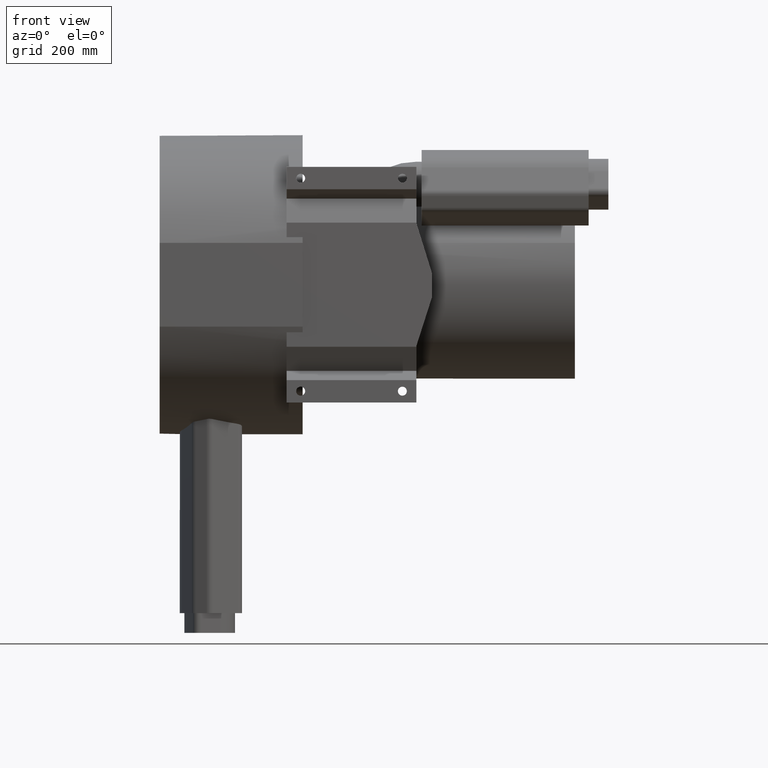
[diagram: clean part render]
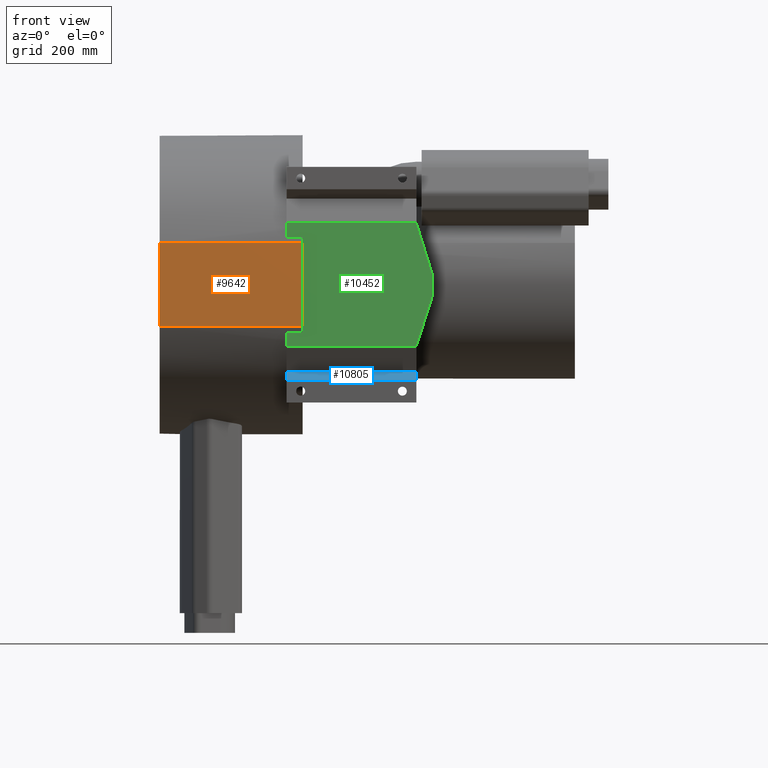
[diagram: same view with three faces highlighted in distinct colors, each labeled with its STEP entity id]
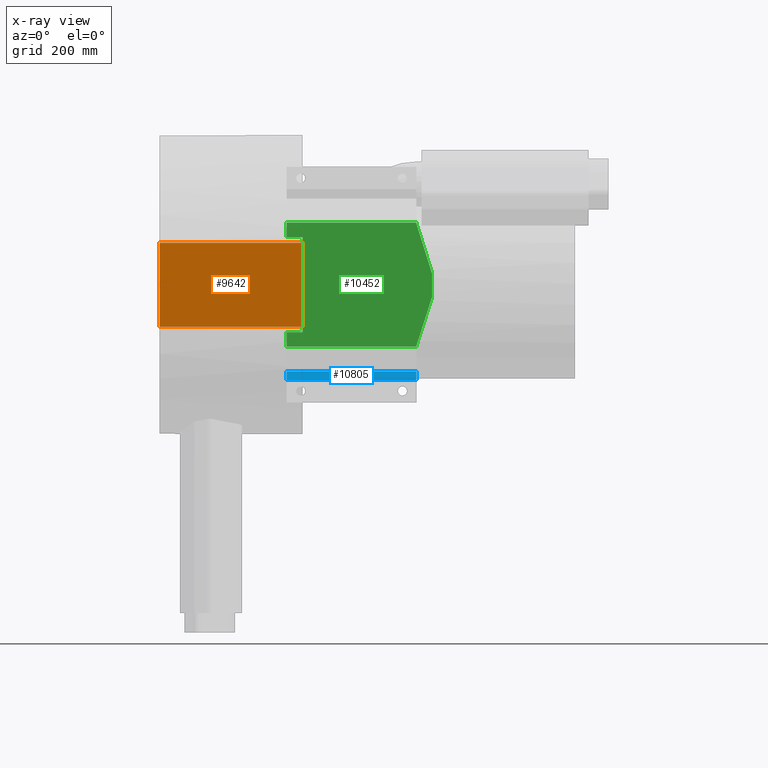
[diagram: x-ray of the same camera — body ghosted, the three highlighted faces saturated]
A machine part, front view with three faces highlighted in distinct colors.
The next image is the same camera in x-ray (body ghosted, the three faces saturated) — at least one of them is partly hidden behind the body in this view.
Their STEP definitions:

[orange] entity #9642 — the highlighted planar face has unit normal (0, 1, 0).
#6292=CARTESIAN_POINT('',(0.0,-240.0,-70.0));
#6293=VERTEX_POINT('',#6292);
#6294=CARTESIAN_POINT('',(0.0,-240.0,70.0));
#6295=VERTEX_POINT('',#6294);
#6296=CARTESIAN_POINT('',(0.0,-240.0,-69.999999999999986));
#6297=DIRECTION('',(0.0,0.0,1.0));
#6298=VECTOR('',#6297,140.0);
#6299=LINE('',#6296,#6298);
#6300=EDGE_CURVE('',#6293,#6295,#6299,.T.);
#9612=CARTESIAN_POINT('',(0.0,-240.0,250.00000000000003));
#9613=DIRECTION('',(0.0,1.0,0.0));
#9614=DIRECTION('',(0.0,0.0,1.0));
#9615=AXIS2_PLACEMENT_3D('',#9612,#9613,#9614);
#9616=PLANE('',#9615);
#9617=CARTESIAN_POINT('',(239.00000000000003,-240.0,70.0));
#9618=VERTEX_POINT('',#9617);
#9619=CARTESIAN_POINT('',(0.0,-240.0,70.0));
#9620=DIRECTION('',(1.0,0.0,0.0));
#9621=VECTOR('',#9620,239.00000000000003);
#9622=LINE('',#9619,#9621);
#9623=EDGE_CURVE('',#6295,#9618,#9622,.T.);
#9624=ORIENTED_EDGE('',*,*,#9623,.F.);
#9625=ORIENTED_EDGE('',*,*,#6300,.F.);
#9626=CARTESIAN_POINT('',(239.00000000000003,-240.0,-70.0));
#9627=VERTEX_POINT('',#9626);
#9628=CARTESIAN_POINT('',(239.00000000000003,-240.0,-70.0));
#9629=DIRECTION('',(-1.0,0.0,0.0));
#9630=VECTOR('',#9629,239.00000000000003);
#9631=LINE('',#9628,#9630);
#9632=EDGE_CURVE('',#9627,#6293,#9631,.T.);
#9633=ORIENTED_EDGE('',*,*,#9632,.F.);
#9634=CARTESIAN_POINT('',(239.00000000000003,-240.0,70.0));
#9635=DIRECTION('',(0.0,0.0,-1.0));
#9636=VECTOR('',#9635,140.0);
#9637=LINE('',#9634,#9636);
#9638=EDGE_CURVE('',#9618,#9627,#9637,.T.);
#9639=ORIENTED_EDGE('',*,*,#9638,.F.);
#9640=EDGE_LOOP('',(#9624,#9625,#9633,#9639));
#9641=FACE_OUTER_BOUND('',#9640,.T.);
#9642=ADVANCED_FACE('',(#9641),#9616,.F.);

[blue] entity #10805 — the highlighted planar face has unit normal (0, 0.5, -0.866).
#10727=CARTESIAN_POINT('',(429.30000000000007,-240.0,-159.53589838486226));
#10728=VERTEX_POINT('',#10727);
#10735=CARTESIAN_POINT('',(212.30000000000007,-240.0,-159.53589838486226));
#10736=VERTEX_POINT('',#10735);
#10737=CARTESIAN_POINT('',(212.30000000000007,-240.0,-159.53589838486226));
#10738=DIRECTION('',(1.0,0.0,0.0));
#10739=VECTOR('',#10738,217.0);
#10740=LINE('',#10737,#10739);
#10741=EDGE_CURVE('',#10736,#10728,#10740,.T.);
#10775=CARTESIAN_POINT('',(239.00000000000003,-214.49166975080229,-144.80865704891011));
#10776=DIRECTION('',(0.0,0.5,-0.866025403784439));
#10777=DIRECTION('',(-1.0,0.0,0.0));
#10778=AXIS2_PLACEMENT_3D('',#10775,#10776,#10777);
#10779=PLANE('',#10778);
#10780=CARTESIAN_POINT('',(429.30000000000007,-214.49166975080229,-144.80865704891011));
#10781=VERTEX_POINT('',#10780);
#10782=CARTESIAN_POINT('',(429.30000000000007,-214.49166975080226,-144.80865704891008));
#10783=DIRECTION('',(0.0,-0.866025403784439,-0.5));
#10784=VECTOR('',#10783,29.454482671904376);
#10785=LINE('',#10782,#10784);
#10786=EDGE_CURVE('',#10781,#10728,#10785,.T.);
#10787=ORIENTED_EDGE('',*,*,#10786,.F.);
#10788=CARTESIAN_POINT('',(212.30000000000007,-214.49166975080229,-144.80865704891011));
#10789=VERTEX_POINT('',#10788);
#10790=CARTESIAN_POINT('',(212.30000000000007,-214.49166975080229,-144.80865704891011));
#10791=DIRECTION('',(1.0,0.0,0.0));
#10792=VECTOR('',#10791,217.0);
#10793=LINE('',#10790,#10792);
#10794=EDGE_CURVE('',#10789,#10781,#10793,.T.);
#10795=ORIENTED_EDGE('',*,*,#10794,.F.);
#10796=CARTESIAN_POINT('',(212.30000000000004,-240.0,-159.53589838486226));
#10797=DIRECTION('',(0.0,0.866025403784439,0.5));
#10798=VECTOR('',#10797,29.454482671904376);
#10799=LINE('',#10796,#10798);
#10800=EDGE_CURVE('',#10736,#10789,#10799,.T.);
#10801=ORIENTED_EDGE('',*,*,#10800,.F.);
#10802=ORIENTED_EDGE('',*,*,#10741,.T.);
#10803=EDGE_LOOP('',(#10787,#10795,#10801,#10802));
#10804=FACE_OUTER_BOUND('',#10803,.T.);
#10805=ADVANCED_FACE('',(#10804),#10779,.F.);

[green] entity #10452 — the highlighted planar face has unit normal (0, -1, 0).
#9715=CARTESIAN_POINT('',(212.30000000000004,-237.0,-79.567581338130452));
#9716=VERTEX_POINT('',#9715);
#9717=CARTESIAN_POINT('',(239.00000000000003,-237.0,-79.567581338130452));
#9718=VERTEX_POINT('',#9717);
#9719=CARTESIAN_POINT('',(212.30000000000004,-237.0,-79.567581338130452));
#9720=DIRECTION('',(1.0,0.0,0.0));
#9721=VECTOR('',#9720,26.69999999999996);
#9722=LINE('',#9719,#9721);
#9723=EDGE_CURVE('',#9716,#9718,#9722,.T.);
#9735=CARTESIAN_POINT('',(239.00000000000003,-237.0,79.567581338130452));
#9736=VERTEX_POINT('',#9735);
#9744=CARTESIAN_POINT('',(212.30000000000004,-237.0,79.567581338130452));
#9745=VERTEX_POINT('',#9744);
#9746=CARTESIAN_POINT('',(239.0,-237.0,79.567581338130452));
#9747=DIRECTION('',(-1.0,0.0,0.0));
#9748=VECTOR('',#9747,26.69999999999996);
#9749=LINE('',#9746,#9748);
#9750=EDGE_CURVE('',#9736,#9745,#9749,.T.);
#10330=CARTESIAN_POINT('',(429.30000000000007,-237.0,103.82308546376017));
#10331=VERTEX_POINT('',#10330);
#10339=CARTESIAN_POINT('',(212.30000000000007,-237.0,103.82308546376017));
#10340=VERTEX_POINT('',#10339);
#10347=CARTESIAN_POINT('',(212.30000000000007,-237.0,103.82308546376017));
#10348=DIRECTION('',(1.0,0.0,0.0));
#10349=VECTOR('',#10348,217.0);
#10350=LINE('',#10347,#10349);
#10351=EDGE_CURVE('',#10340,#10331,#10350,.T.);
#10362=CARTESIAN_POINT('',(212.30000000000004,-237.0,103.82308546376017));
#10363=DIRECTION('',(0.0,0.0,-1.0));
#10364=VECTOR('',#10363,24.255504125629713);
#10365=LINE('',#10362,#10364);
#10366=EDGE_CURVE('',#10340,#9745,#10365,.T.);
#10381=CARTESIAN_POINT('',(239.00000000000003,-237.0,-9.457335E-014));
#10382=DIRECTION('',(0.0,-1.0,0.0));
#10383=DIRECTION('',(0.0,0.0,-1.0));
#10384=AXIS2_PLACEMENT_3D('',#10381,#10382,#10383);
#10385=PLANE('',#10384);
#10386=ORIENTED_EDGE('',*,*,#9750,.F.);
#10387=CARTESIAN_POINT('',(239.00000000000003,-237.0,-79.567581338130466));
#10388=DIRECTION('',(0.0,0.0,1.0));
#10389=VECTOR('',#10388,159.1351626762609);
#10390=LINE('',#10387,#10389);
#10391=EDGE_CURVE('',#9718,#9736,#10390,.T.);
#10392=ORIENTED_EDGE('',*,*,#10391,.F.);
#10393=ORIENTED_EDGE('',*,*,#9723,.F.);
#10394=CARTESIAN_POINT('',(212.30000000000007,-237.0,-103.82308546376017));
#10395=VERTEX_POINT('',#10394);
#10396=CARTESIAN_POINT('',(212.30000000000004,-237.0,-103.82308546376017));
#10397=DIRECTION('',(0.0,0.0,1.0));
#10398=VECTOR('',#10397,24.255504125629713);
#10399=LINE('',#10396,#10398);
#10400=EDGE_CURVE('',#10395,#9716,#10399,.T.);
#10401=ORIENTED_EDGE('',*,*,#10400,.F.);
#10402=CARTESIAN_POINT('',(429.30000000000007,-237.0,-103.82308546376017));
#10403=VERTEX_POINT('',#10402);
#10404=CARTESIAN_POINT('',(212.30000000000007,-237.0,-103.82308546376017));
#10405=DIRECTION('',(1.0,0.0,0.0));
#10406=VECTOR('',#10405,217.0);
#10407=LINE('',#10404,#10406);
#10408=EDGE_CURVE('',#10395,#10403,#10407,.T.);
#10409=ORIENTED_EDGE('',*,*,#10408,.T.);
#10410=CARTESIAN_POINT('',(429.30000000000007,-237.0,-102.21539030917339));
#10411=VERTEX_POINT('',#10410);
#10412=CARTESIAN_POINT('',(429.30000000000007,-237.0,-103.82308546376034));
#10413=DIRECTION('',(0.0,0.0,1.0));
#10414=VECTOR('',#10413,1.607695154586963);
#10415=LINE('',#10412,#10414);
#10416=EDGE_CURVE('',#10403,#10411,#10415,.T.);
#10417=ORIENTED_EDGE('',*,*,#10416,.T.);
#10418=CARTESIAN_POINT('',(455.30000000000007,-237.0,-20.999890309173352));
#10419=VERTEX_POINT('',#10418);
#10420=CARTESIAN_POINT('',(455.30000000000007,-237.0,-20.999890309173352));
#10421=DIRECTION('',(-0.304893161585802,0.0,-0.952386560183529));
#10422=VECTOR('',#10421,85.275772879816245);
#10423=LINE('',#10420,#10422);
#10424=EDGE_CURVE('',#10419,#10411,#10423,.T.);
#10425=ORIENTED_EDGE('',*,*,#10424,.F.);
#10426=CARTESIAN_POINT('',(455.30000000000001,-237.0,19.00010969082664));
#10427=VERTEX_POINT('',#10426);
#10428=CARTESIAN_POINT('',(455.30000000000001,-237.0,19.00010969082664));
#10429=DIRECTION('',(0.0,0.0,-1.0));
#10430=VECTOR('',#10429,39.999999999999993);
#10431=LINE('',#10428,#10430);
#10432=EDGE_CURVE('',#10427,#10419,#10431,.T.);
#10433=ORIENTED_EDGE('',*,*,#10432,.F.);
#10434=CARTESIAN_POINT('',(429.30000000000007,-237.0,102.21539030917339));
#10435=VERTEX_POINT('',#10434);
#10436=CARTESIAN_POINT('',(429.30000000000007,-237.0,102.21539030917339));
#10437=DIRECTION('',(0.298225093315993,0.0,-0.954495570297038));
#10438=VECTOR('',#10437,87.182469157452715);
#10439=LINE('',#10436,#10438);
#10440=EDGE_CURVE('',#10435,#10427,#10439,.T.);
#10441=ORIENTED_EDGE('',*,*,#10440,.F.);
#10442=CARTESIAN_POINT('',(429.30000000000007,-237.0,102.21539030917339));
#10443=DIRECTION('',(0.0,0.0,1.0));
#10444=VECTOR('',#10443,1.607695154586779);
#10445=LINE('',#10442,#10444);
#10446=EDGE_CURVE('',#10435,#10331,#10445,.T.);
#10447=ORIENTED_EDGE('',*,*,#10446,.T.);
#10448=ORIENTED_EDGE('',*,*,#10351,.F.);
#10449=ORIENTED_EDGE('',*,*,#10366,.T.);
#10450=EDGE_LOOP('',(#10386,#10392,#10393,#10401,#10409,#10417,#10425,#10433,#10441,#10447,#10448,#10449));
#10451=FACE_OUTER_BOUND('',#10450,.T.);
#10452=ADVANCED_FACE('',(#10451),#10385,.T.);